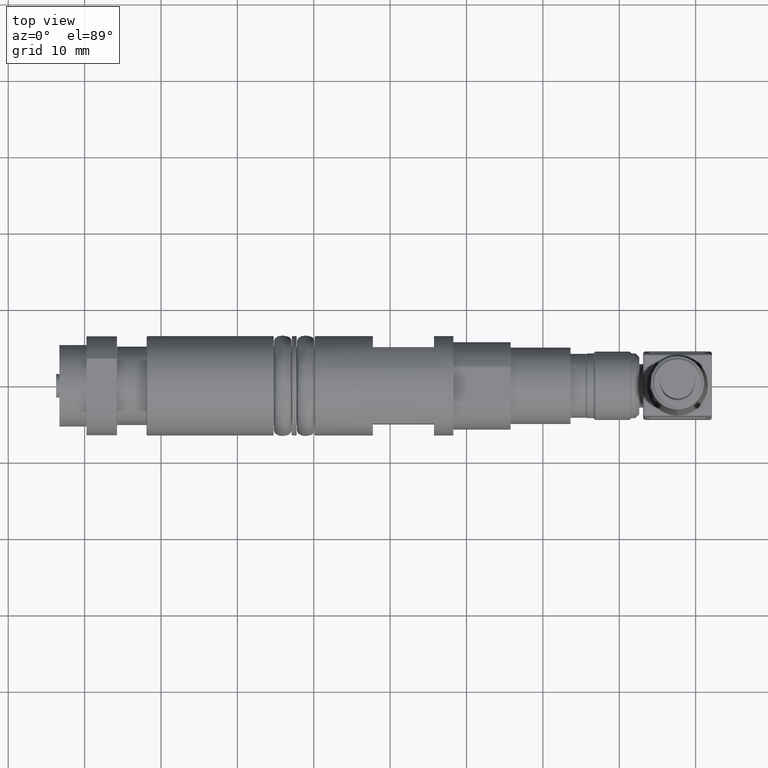
[diagram: clean part render]
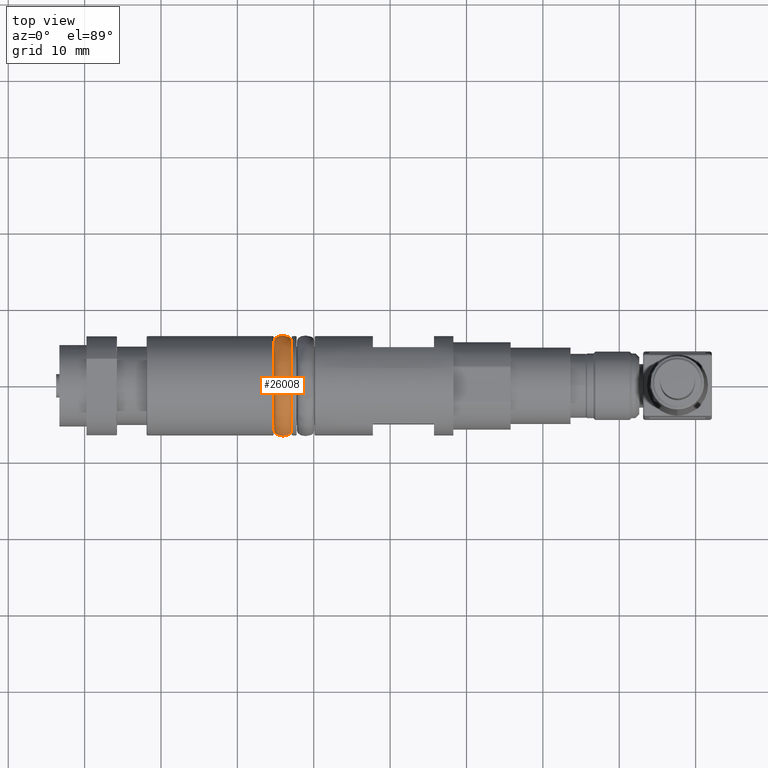
[diagram: same view with one face highlighted and labeled with its STEP entity id]
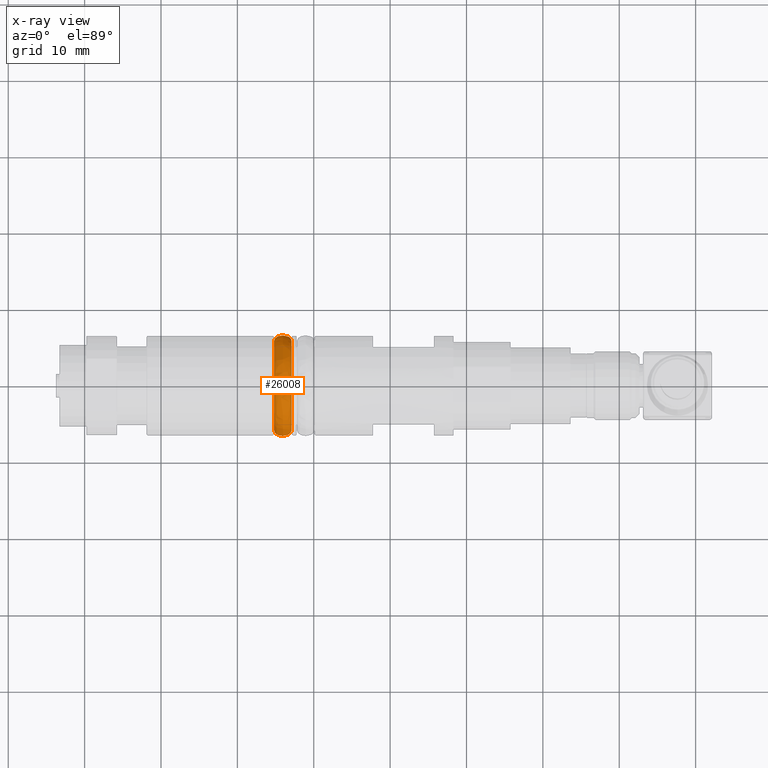
[diagram: x-ray of the same camera — body ghosted, the highlighted face saturated]
A machine part, top view. The second image highlights one B-rep face of the part: STEP entity #26008.
The next image is the same camera in x-ray: the body ghosted, the highlighted face saturated — about 0% of this face is hidden behind the body in this view.
In plain terms, the highlighted face is a freeform B-spline surface patch.
Its self-contained STEP definition (entity closure, byte-faithful):
#7032=FACE_OUTER_BOUND('',#8450,.T.);
#8450=EDGE_LOOP('',(#17063,#17064,#17065,#17066));
#10049=CIRCLE('',#27435,0.231255905511811);
#10636=ELLIPSE('',#27434,0.045,0.0285);
#10778=VERTEX_POINT('',#35395);
#13303=EDGE_CURVE('',#10778,#10778,#10636,.T.);
#13304=EDGE_CURVE('',#10778,#10778,#10049,.T.);
#17063=ORIENTED_EDGE('',*,*,#13303,.F.);
#17064=ORIENTED_EDGE('',*,*,#13304,.T.);
#17065=ORIENTED_EDGE('',*,*,#13303,.T.);
#17066=ORIENTED_EDGE('',*,*,#13304,.F.);
#24585=(
BOUNDED_SURFACE()
B_SPLINE_SURFACE(2,2,((#35314,#35315,#35316,#35317,#35318,#35319,#35320,
#35321,#35322),(#35323,#35324,#35325,#35326,#35327,#35328,#35329,#35330,
#35331),(#35332,#35333,#35334,#35335,#35336,#35337,#35338,#35339,#35340),
(#35341,#35342,#35343,#35344,#35345,#35346,#35347,#35348,#35349),(#35350,
#35351,#35352,#35353,#35354,#35355,#35356,#35357,#35358),(#35359,#35360,
#35361,#35362,#35363,#35364,#35365,#35366,#35367),(#35368,#35369,#35370,
#35371,#35372,#35373,#35374,#35375,#35376),(#35377,#35378,#35379,#35380,
#35381,#35382,#35383,#35384,#35385),(#35386,#35387,#35388,#35389,#35390,
#35391,#35392,#35393,#35394)),.UNSPECIFIED.,.T.,.T.,.F.)
B_SPLINE_SURFACE_WITH_KNOTS((3,2,2,2,3),(3,2,2,2,3),(-3.14159265358979,
-1.5707963267949,0.,1.5707963267949,3.14159265358979),(0.,1.5707963267949,
3.14159265358979,4.71238898038469,6.28318530717959),.UNSPECIFIED.)
GEOMETRIC_REPRESENTATION_ITEM()
RATIONAL_B_SPLINE_SURFACE(((1.,0.707106781186548,1.,0.707106781186548,1.,
0.707106781186548,1.,0.707106781186548,1.),(0.70710678118655,0.500000000000002,
0.70710678118655,0.500000000000002,0.70710678118655,0.500000000000002,0.70710678118655,
0.500000000000002,0.70710678118655),(1.,0.707106781186548,1.,0.707106781186548,
1.,0.707106781186548,1.,0.707106781186548,1.),(0.70710678118655,0.500000000000002,
0.70710678118655,0.500000000000002,0.70710678118655,0.500000000000002,0.70710678118655,
0.500000000000002,0.70710678118655),(1.,0.707106781186548,1.,0.707106781186548,
1.,0.707106781186548,1.,0.707106781186548,1.),(0.70710678118655,0.500000000000002,
0.70710678118655,0.500000000000002,0.70710678118655,0.500000000000002,0.70710678118655,
0.500000000000002,0.70710678118655),(1.,0.707106781186548,1.,0.707106781186548,
1.,0.707106781186548,1.,0.707106781186548,1.),(0.70710678118655,0.500000000000002,
0.70710678118655,0.500000000000002,0.70710678118655,0.500000000000002,0.70710678118655,
0.500000000000002,0.70710678118655),(1.,0.707106781186548,1.,0.707106781186548,
1.,0.707106781186548,1.,0.707106781186548,1.)))
REPRESENTATION_ITEM('')
SURFACE()
);
#26008=ADVANCED_FACE('',(#7032),#24585,.T.);
#27434=AXIS2_PLACEMENT_3D('',#35396,#29267,#29268);
#27435=AXIS2_PLACEMENT_3D('',#35397,#29269,#29270);
#29267=DIRECTION('center_axis',(5.65290329389646E-17,-0.968097227332137,
-0.250574855944944));
#29268=DIRECTION('ref_axis',(-1.,-5.83918963333324E-17,1.27261078515066E-31));
#29269=DIRECTION('center_axis',(-1.,-9.35646189223383E-17,1.35889992185092E-16));
#29270=DIRECTION('ref_axis',(1.54999665564582E-16,-0.250574855944944,0.968097227332137));
#35314=CARTESIAN_POINT('Ctrl Pts',(1.0667805395233,-0.0579469152100395,
0.223878200930167));
#35315=CARTESIAN_POINT('Ctrl Pts',(1.0667805395233,0.165931285720127,0.281825116140206));
#35316=CARTESIAN_POINT('Ctrl Pts',(1.0667805395233,0.223878200930167,0.0579469152100396));
#35317=CARTESIAN_POINT('Ctrl Pts',(1.0667805395233,0.281825116140206,-0.165931285720127));
#35318=CARTESIAN_POINT('Ctrl Pts',(1.0667805395233,0.0579469152100397,-0.223878200930167));
#35319=CARTESIAN_POINT('Ctrl Pts',(1.0667805395233,-0.165931285720127,-0.281825116140206));
#35320=CARTESIAN_POINT('Ctrl Pts',(1.0667805395233,-0.223878200930167,-0.0579469152100396));
#35321=CARTESIAN_POINT('Ctrl Pts',(1.0667805395233,-0.281825116140206,0.165931285720127));
#35322=CARTESIAN_POINT('Ctrl Pts',(1.0667805395233,-0.0579469152100395,
0.223878200930167));
#35323=CARTESIAN_POINT('Ctrl Pts',(1.0667805395233,-0.0508055318156086,
0.196287429951201));
#35324=CARTESIAN_POINT('Ctrl Pts',(1.0667805395233,0.145481898135592,0.24709296176681));
#35325=CARTESIAN_POINT('Ctrl Pts',(1.0667805395233,0.196287429951201,0.0508055318156087));
#35326=CARTESIAN_POINT('Ctrl Pts',(1.0667805395233,0.24709296176681,-0.145481898135592));
#35327=CARTESIAN_POINT('Ctrl Pts',(1.0667805395233,0.0508055318156088,-0.196287429951201));
#35328=CARTESIAN_POINT('Ctrl Pts',(1.0667805395233,-0.145481898135592,-0.24709296176681));
#35329=CARTESIAN_POINT('Ctrl Pts',(1.0667805395233,-0.196287429951201,-0.0508055318156087));
#35330=CARTESIAN_POINT('Ctrl Pts',(1.0667805395233,-0.247092961766809,0.145481898135592));
#35331=CARTESIAN_POINT('Ctrl Pts',(1.0667805395233,-0.0508055318156086,
0.196287429951201));
#35332=CARTESIAN_POINT('Ctrl Pts',(1.0217805395233,-0.0508055318156086,
0.196287429951201));
#35333=CARTESIAN_POINT('Ctrl Pts',(1.0217805395233,0.145481898135592,0.24709296176681));
#35334=CARTESIAN_POINT('Ctrl Pts',(1.0217805395233,0.196287429951201,0.0508055318156087));
#35335=CARTESIAN_POINT('Ctrl Pts',(1.0217805395233,0.24709296176681,-0.145481898135592));
#35336=CARTESIAN_POINT('Ctrl Pts',(1.0217805395233,0.0508055318156088,-0.196287429951201));
#35337=CARTESIAN_POINT('Ctrl Pts',(1.0217805395233,-0.145481898135592,-0.24709296176681));
#35338=CARTESIAN_POINT('Ctrl Pts',(1.0217805395233,-0.196287429951201,-0.0508055318156087));
#35339=CARTESIAN_POINT('Ctrl Pts',(1.0217805395233,-0.247092961766809,0.145481898135592));
#35340=CARTESIAN_POINT('Ctrl Pts',(1.0217805395233,-0.0508055318156086,
0.196287429951201));
#35341=CARTESIAN_POINT('Ctrl Pts',(0.976780539523296,-0.0508055318156086,
0.196287429951201));
#35342=CARTESIAN_POINT('Ctrl Pts',(0.976780539523296,0.145481898135592,
0.24709296176681));
#35343=CARTESIAN_POINT('Ctrl Pts',(0.976780539523296,0.196287429951201,
0.0508055318156087));
#35344=CARTESIAN_POINT('Ctrl Pts',(0.976780539523296,0.24709296176681,-0.145481898135592));
#35345=CARTESIAN_POINT('Ctrl Pts',(0.976780539523296,0.0508055318156088,
-0.196287429951201));
#35346=CARTESIAN_POINT('Ctrl Pts',(0.976780539523296,-0.145481898135592,
-0.24709296176681));
#35347=CARTESIAN_POINT('Ctrl Pts',(0.976780539523296,-0.196287429951201,
-0.0508055318156087));
#35348=CARTESIAN_POINT('Ctrl Pts',(0.976780539523296,-0.247092961766809,
0.145481898135592));
#35349=CARTESIAN_POINT('Ctrl Pts',(0.976780539523296,-0.0508055318156086,
0.196287429951201));
#35350=CARTESIAN_POINT('Ctrl Pts',(0.976780539523296,-0.0579469152100395,
0.223878200930167));
#35351=CARTESIAN_POINT('Ctrl Pts',(0.976780539523296,0.165931285720127,
0.281825116140206));
#35352=CARTESIAN_POINT('Ctrl Pts',(0.976780539523296,0.223878200930167,
0.0579469152100396));
#35353=CARTESIAN_POINT('Ctrl Pts',(0.976780539523296,0.281825116140206,
-0.165931285720127));
#35354=CARTESIAN_POINT('Ctrl Pts',(0.976780539523296,0.0579469152100397,
-0.223878200930167));
#35355=CARTESIAN_POINT('Ctrl Pts',(0.976780539523296,-0.165931285720127,
-0.281825116140206));
#35356=CARTESIAN_POINT('Ctrl Pts',(0.976780539523296,-0.223878200930167,
-0.0579469152100396));
#35357=CARTESIAN_POINT('Ctrl Pts',(0.976780539523296,-0.281825116140206,
0.165931285720127));
#35358=CARTESIAN_POINT('Ctrl Pts',(0.976780539523296,-0.0579469152100395,
0.223878200930167));
#35359=CARTESIAN_POINT('Ctrl Pts',(0.976780539523296,-0.0650882986044704,
0.251468971909133));
#35360=CARTESIAN_POINT('Ctrl Pts',(0.976780539523296,0.186380673304662,
0.316557270513603));
#35361=CARTESIAN_POINT('Ctrl Pts',(0.976780539523296,0.251468971909133,
0.0650882986044705));
#35362=CARTESIAN_POINT('Ctrl Pts',(0.976780539523296,0.316557270513603,
-0.186380673304662));
#35363=CARTESIAN_POINT('Ctrl Pts',(0.976780539523296,0.0650882986044706,
-0.251468971909133));
#35364=CARTESIAN_POINT('Ctrl Pts',(0.976780539523296,-0.186380673304662,
-0.316557270513603));
#35365=CARTESIAN_POINT('Ctrl Pts',(0.976780539523296,-0.251468971909133,
-0.0650882986044705));
#35366=CARTESIAN_POINT('Ctrl Pts',(0.976780539523296,-0.316557270513603,
0.186380673304662));
#35367=CARTESIAN_POINT('Ctrl Pts',(0.976780539523296,-0.0650882986044704,
0.251468971909133));
#35368=CARTESIAN_POINT('Ctrl Pts',(1.0217805395233,-0.0650882986044704,
0.251468971909133));
#35369=CARTESIAN_POINT('Ctrl Pts',(1.0217805395233,0.186380673304662,0.316557270513603));
#35370=CARTESIAN_POINT('Ctrl Pts',(1.0217805395233,0.251468971909133,0.0650882986044705));
#35371=CARTESIAN_POINT('Ctrl Pts',(1.0217805395233,0.316557270513603,-0.186380673304662));
#35372=CARTESIAN_POINT('Ctrl Pts',(1.0217805395233,0.0650882986044706,-0.251468971909133));
#35373=CARTESIAN_POINT('Ctrl Pts',(1.0217805395233,-0.186380673304662,-0.316557270513603));
#35374=CARTESIAN_POINT('Ctrl Pts',(1.0217805395233,-0.251468971909133,-0.0650882986044705));
#35375=CARTESIAN_POINT('Ctrl Pts',(1.0217805395233,-0.316557270513603,0.186380673304662));
#35376=CARTESIAN_POINT('Ctrl Pts',(1.0217805395233,-0.0650882986044704,
0.251468971909133));
#35377=CARTESIAN_POINT('Ctrl Pts',(1.0667805395233,-0.0650882986044704,
0.251468971909133));
#35378=CARTESIAN_POINT('Ctrl Pts',(1.0667805395233,0.186380673304662,0.316557270513603));
#35379=CARTESIAN_POINT('Ctrl Pts',(1.0667805395233,0.251468971909133,0.0650882986044705));
#35380=CARTESIAN_POINT('Ctrl Pts',(1.0667805395233,0.316557270513603,-0.186380673304662));
#35381=CARTESIAN_POINT('Ctrl Pts',(1.0667805395233,0.0650882986044706,-0.251468971909133));
#35382=CARTESIAN_POINT('Ctrl Pts',(1.0667805395233,-0.186380673304662,-0.316557270513603));
#35383=CARTESIAN_POINT('Ctrl Pts',(1.0667805395233,-0.251468971909133,-0.0650882986044705));
#35384=CARTESIAN_POINT('Ctrl Pts',(1.0667805395233,-0.316557270513603,0.186380673304662));
#35385=CARTESIAN_POINT('Ctrl Pts',(1.0667805395233,-0.0650882986044704,
0.251468971909133));
#35386=CARTESIAN_POINT('Ctrl Pts',(1.0667805395233,-0.0579469152100395,
0.223878200930167));
#35387=CARTESIAN_POINT('Ctrl Pts',(1.0667805395233,0.165931285720127,0.281825116140206));
#35388=CARTESIAN_POINT('Ctrl Pts',(1.0667805395233,0.223878200930167,0.0579469152100396));
#35389=CARTESIAN_POINT('Ctrl Pts',(1.0667805395233,0.281825116140206,-0.165931285720127));
#35390=CARTESIAN_POINT('Ctrl Pts',(1.0667805395233,0.0579469152100397,-0.223878200930167));
#35391=CARTESIAN_POINT('Ctrl Pts',(1.0667805395233,-0.165931285720127,-0.281825116140206));
#35392=CARTESIAN_POINT('Ctrl Pts',(1.0667805395233,-0.223878200930167,-0.0579469152100396));
#35393=CARTESIAN_POINT('Ctrl Pts',(1.0667805395233,-0.281825116140206,0.165931285720127));
#35394=CARTESIAN_POINT('Ctrl Pts',(1.0667805395233,-0.0579469152100395,
0.223878200930167));
#35395=CARTESIAN_POINT('',(1.0667805395233,-0.0579469152100395,0.223878200930167));
#35396=CARTESIAN_POINT('Origin',(1.0217805395233,-0.0579469152100395,0.223878200930167));
#35397=CARTESIAN_POINT('Origin',(1.0667805395233,1.26461834068256E-16,-6.11504964832913E-18));